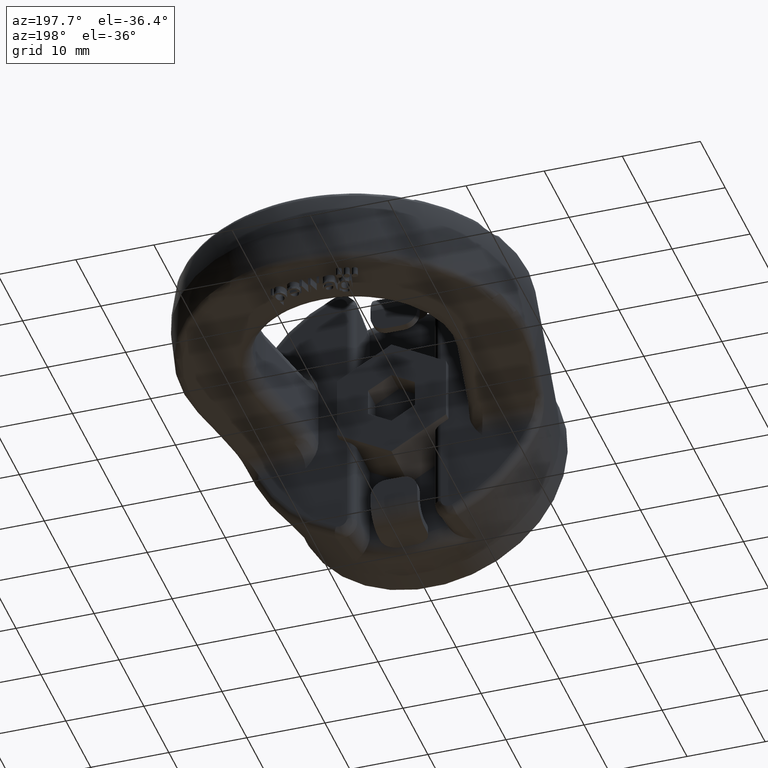
[diagram: clean part render]
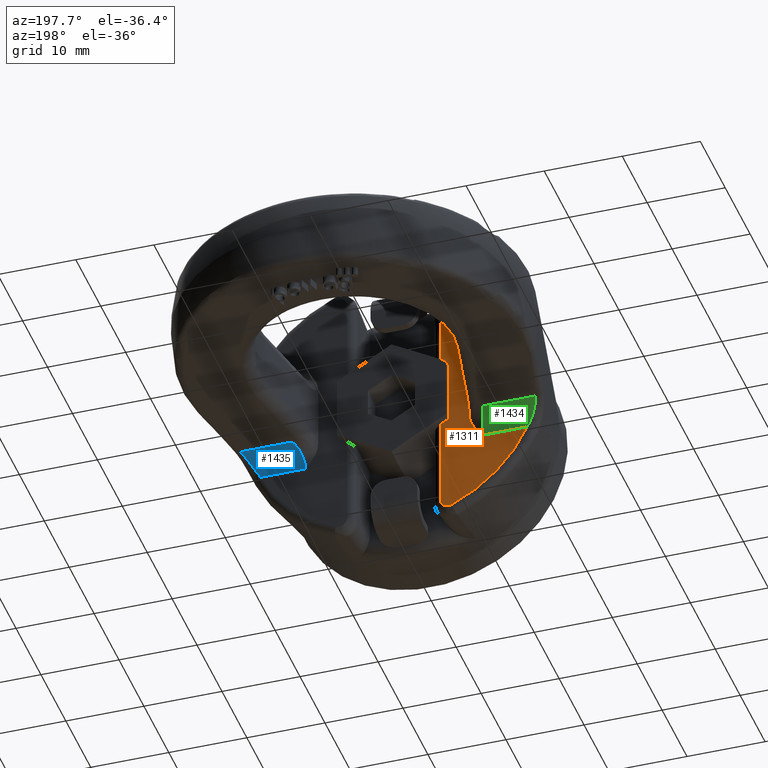
[diagram: same view with three faces highlighted in distinct colors, each labeled with its STEP entity id]
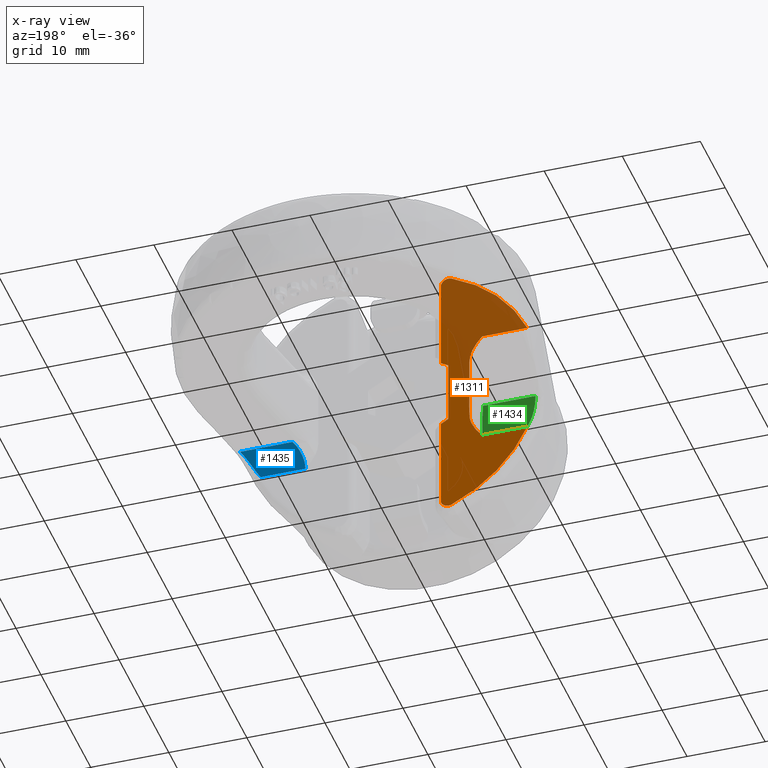
[diagram: x-ray of the same camera — body ghosted, the three highlighted faces saturated]
A machine part, auxiliary view with three faces highlighted in distinct colors.
The next image is the same camera in x-ray (body ghosted, the three faces saturated) — at least one of them is partly hidden behind the body in this view.
Their STEP definitions:

[orange] entity #1311 — the highlighted planar face has unit normal (0, 1, 0).
#1091=FACE_OUTER_BOUND('',#1823,.T.);
#1311=ADVANCED_FACE('',(#1091),#1550,.T.);
#1550=PLANE('',#5126);
#1671=CIRCLE('',#5124,18.6547584905246);
#1672=CIRCLE('',#5125,18.6547584905246);
#1823=EDGE_LOOP('',(#2767,#2768,#2769,#2770,#2771,#2772,#2773,#2774,#2775,
#2776,#2777,#2778,#2779,#2780));
#2125=LINE('',#6575,#2405);
#2126=LINE('',#6577,#2406);
#2127=LINE('',#6579,#2407);
#2128=LINE('',#6581,#2408);
#2129=LINE('',#6583,#2409);
#2130=LINE('',#6607,#2410);
#2131=LINE('',#6614,#2411);
#2132=LINE('',#6621,#2412);
#2405=VECTOR('',#5437,1.);
#2406=VECTOR('',#5438,1.);
#2407=VECTOR('',#5439,1.);
#2408=VECTOR('',#5440,1.);
#2409=VECTOR('',#5441,1.);
#2410=VECTOR('',#5444,1.);
#2411=VECTOR('',#5445,1.);
#2412=VECTOR('',#5446,1.);
#2767=ORIENTED_EDGE('',*,*,#4331,.T.);
#2768=ORIENTED_EDGE('',*,*,#4332,.T.);
#2769=ORIENTED_EDGE('',*,*,#4333,.T.);
#2770=ORIENTED_EDGE('',*,*,#4334,.T.);
#2771=ORIENTED_EDGE('',*,*,#4335,.T.);
#2772=ORIENTED_EDGE('',*,*,#4336,.T.);
#2773=ORIENTED_EDGE('',*,*,#4337,.T.);
#2774=ORIENTED_EDGE('',*,*,#4338,.T.);
#2775=ORIENTED_EDGE('',*,*,#4339,.T.);
#2776=ORIENTED_EDGE('',*,*,#4340,.T.);
#2777=ORIENTED_EDGE('',*,*,#4341,.T.);
#2778=ORIENTED_EDGE('',*,*,#4342,.T.);
#2779=ORIENTED_EDGE('',*,*,#4343,.T.);
#2780=ORIENTED_EDGE('',*,*,#4344,.T.);
#3943=VERTEX_POINT('',#6573);
#3944=VERTEX_POINT('',#6574);
#3945=VERTEX_POINT('',#6576);
#3946=VERTEX_POINT('',#6578);
#3947=VERTEX_POINT('',#6580);
#3948=VERTEX_POINT('',#6582);
#3949=VERTEX_POINT('',#6584);
#3950=VERTEX_POINT('',#6604);
#3951=VERTEX_POINT('',#6606);
#3952=VERTEX_POINT('',#6608);
#3953=VERTEX_POINT('',#6613);
#3954=VERTEX_POINT('',#6615);
#3955=VERTEX_POINT('',#6620);
#3956=VERTEX_POINT('',#6622);
#4331=EDGE_CURVE('',#3943,#3944,#4875,.T.);
#4332=EDGE_CURVE('',#3944,#3945,#2125,.T.);
#4333=EDGE_CURVE('',#3945,#3946,#2126,.T.);
#4334=EDGE_CURVE('',#3946,#3947,#2127,.T.);
#4335=EDGE_CURVE('',#3947,#3948,#2128,.T.);
#4336=EDGE_CURVE('',#3948,#3949,#2129,.T.);
#4337=EDGE_CURVE('',#3949,#3950,#4876,.T.);
#4338=EDGE_CURVE('',#3950,#3951,#1671,.T.);
#4339=EDGE_CURVE('',#3951,#3952,#2130,.T.);
#4340=EDGE_CURVE('',#3952,#3953,#4877,.T.);
#4341=EDGE_CURVE('',#3953,#3954,#2131,.T.);
#4342=EDGE_CURVE('',#3954,#3955,#4878,.T.);
#4343=EDGE_CURVE('',#3955,#3956,#2132,.T.);
#4344=EDGE_CURVE('',#3956,#3943,#1672,.T.);
#4875=B_SPLINE_CURVE_WITH_KNOTS('',3,(#6554,#6555,#6556,#6557,#6558,#6559,
#6560,#6561,#6562,#6563,#6564,#6565,#6566,#6567,#6568,#6569,#6570,#6571,
#6572),.UNSPECIFIED.,.F.,.F.,(4,3,3,3,3,3,4),(0.,0.16636582958768,0.33276934988053,
0.498799265916701,0.666594790578301,0.837817827095477,1.),.UNSPECIFIED.);
#4876=B_SPLINE_CURVE_WITH_KNOTS('',3,(#6585,#6586,#6587,#6588,#6589,#6590,
#6591,#6592,#6593,#6594,#6595,#6596,#6597,#6598,#6599,#6600,#6601,#6602,
#6603),.UNSPECIFIED.,.F.,.F.,(4,3,3,3,3,3,4),(0.,0.176665433598339,0.353446199976391,
0.528330467583618,0.699362114366066,0.866909249527525,1.),.UNSPECIFIED.);
#4877=B_SPLINE_CURVE_WITH_KNOTS('',3,(#6609,#6610,#6611,#6612),
 .UNSPECIFIED.,.F.,.F.,(4,4),(0.,1.),.UNSPECIFIED.);
#4878=B_SPLINE_CURVE_WITH_KNOTS('',3,(#6616,#6617,#6618,#6619),
 .UNSPECIFIED.,.F.,.F.,(4,4),(0.,1.),.UNSPECIFIED.);
#5124=AXIS2_PLACEMENT_3D('',#6605,#5442,#5443);
#5125=AXIS2_PLACEMENT_3D('',#6623,#5447,#5448);
#5126=AXIS2_PLACEMENT_3D('',#6624,#5449,#5450);
#5437=DIRECTION('',(0.,0.,-1.));
#5438=DIRECTION('',(-0.866025403784443,0.,-0.499999999999993));
#5439=DIRECTION('',(0.,0.,-1.));
#5440=DIRECTION('',(0.866025403784444,0.,-0.499999999999991));
#5441=DIRECTION('',(2.34291072916505E-15,0.,-1.));
#5442=DIRECTION('',(0.,1.,0.));
#5443=DIRECTION('',(2.34291072916505E-15,0.,-1.));
#5444=DIRECTION('',(1.,0.,2.34291072916505E-15));
#5445=DIRECTION('',(0.,0.,1.));
#5446=DIRECTION('',(-1.,0.,0.));
#5447=DIRECTION('',(0.,1.,0.));
#5448=DIRECTION('',(0.,0.,1.));
#5449=DIRECTION('',(0.,1.,0.));
#5450=DIRECTION('',(0.,0.,1.));
#6554=CARTESIAN_POINT('',(-7.38855146920166,15.,17.1291950052173));
#6555=CARTESIAN_POINT('',(-7.28779893410865,15.,17.172653865424));
#6556=CARTESIAN_POINT('',(-7.17819170137101,15.,17.1994339919736));
#6557=CARTESIAN_POINT('',(-7.06873742951238,15.,17.2071481497388));
#6558=CARTESIAN_POINT('',(-6.95926541915559,15.,17.2148635576843));
#6559=CARTESIAN_POINT('',(-6.84694815547005,15.,17.2037107687727));
#6560=CARTESIAN_POINT('',(-6.74111029423135,15.,17.1746936066141));
#6561=CARTESIAN_POINT('',(-6.63548138446364,15.,17.1457337318822));
#6562=CARTESIAN_POINT('',(-6.53343351982407,15.,17.0982208806601));
#6563=CARTESIAN_POINT('',(-6.44310874469345,15.,17.0362727094134));
#6564=CARTESIAN_POINT('',(-6.35181573251809,15.,16.9736604843214));
#6565=CARTESIAN_POINT('',(-6.27003140448692,15.,16.8946509783798));
#6566=CARTESIAN_POINT('',(-6.20398878813676,15.,16.8058079841223));
#6567=CARTESIAN_POINT('',(-6.13660818891035,15.,16.7151650853249));
#6568=CARTESIAN_POINT('',(-6.08378773504327,15.,16.6118727453325));
#6569=CARTESIAN_POINT('',(-6.04942980977817,15.,16.5042817920605));
#6570=CARTESIAN_POINT('',(-6.01683440321599,15.,16.4022101204664));
#6571=CARTESIAN_POINT('',(-5.99999999999999,15.,16.2938053130752));
#6572=CARTESIAN_POINT('',(-6.,15.,16.1866554802663));
#6573=CARTESIAN_POINT('',(-7.38855146920166,15.,17.1291950052173));
#6574=CARTESIAN_POINT('',(-6.,15.,16.1866554802663));
#6575=CARTESIAN_POINT('',(-6.,15.,24.75));
#6576=CARTESIAN_POINT('',(-6.,15.,4.61880215351701));
#6577=CARTESIAN_POINT('',(-0.041661335715551,15.,8.05885058526453));
#6578=CARTESIAN_POINT('',(-7.,15.,4.04145188432739));
#6579=CARTESIAN_POINT('',(-7.,15.,24.75));
#6580=CARTESIAN_POINT('',(-6.99999999999999,15.,-4.04145188432741));
#6581=CARTESIAN_POINT('',(3.46706437183239,15.,-10.0846143170298));
#6582=CARTESIAN_POINT('',(-5.99999999999999,15.,-4.61880215351702));
#6583=CARTESIAN_POINT('',(-5.99999999999994,15.,-24.75));
#6584=CARTESIAN_POINT('',(-5.99999999999996,15.,-16.1866554802662));
#6585=CARTESIAN_POINT('',(-5.99999999999996,15.,-16.1866554802662));
#6586=CARTESIAN_POINT('',(-5.9999999999998,15.,-16.303132099409));
#6587=CARTESIAN_POINT('',(-6.01997477411016,15.,-16.4212184862241));
#6588=CARTESIAN_POINT('',(-6.0584211749354,15.,-16.5311670063166));
#6589=CARTESIAN_POINT('',(-6.09688152329111,15.,-16.6411554133764));
#6590=CARTESIAN_POINT('',(-6.15493584388144,15.,-16.7460687032556));
#6591=CARTESIAN_POINT('',(-6.22799508070677,15.,-16.8368376186269));
#6592=CARTESIAN_POINT('',(-6.30026174589834,15.,-16.9266218417037));
#6593=CARTESIAN_POINT('',(-6.38929656860443,15.,-17.0050924757316));
#6594=CARTESIAN_POINT('',(-6.48768039331077,15.,-17.0651283037642));
#6595=CARTESIAN_POINT('',(-6.58392175794649,15.,-17.1238567587124));
#6596=CARTESIAN_POINT('',(-6.69185066158765,15.,-17.1665887783719));
#6597=CARTESIAN_POINT('',(-6.80226970279799,15.,-17.1893718208759));
#6598=CARTESIAN_POINT('',(-6.9104852241927,15.,-17.211700205514));
#6599=CARTESIAN_POINT('',(-7.02411160321702,15.,-17.2154922625139));
#6600=CARTESIAN_POINT('',(-7.13357129998125,15.,-17.2004015164898));
#6601=CARTESIAN_POINT('',(-7.22098982875329,15.,-17.1883494931927));
#6602=CARTESIAN_POINT('',(-7.30752267175555,15.,-17.164146177192));
#6603=CARTESIAN_POINT('',(-7.38855146920293,15.,-17.1291950052166));
#6604=CARTESIAN_POINT('',(-7.38855146920293,15.,-17.1291950052166));
#6605=CARTESIAN_POINT('',(1.26937408619407E-13,15.,-4.20507007568092E-14));
#6606=CARTESIAN_POINT('',(-17.080691272305,15.,-7.50000000000005));
#6607=CARTESIAN_POINT('',(-4.99999999999998,15.,-7.50000000000002));
#6608=CARTESIAN_POINT('',(-11.3216990566028,15.,-7.50000000000003));
#6609=CARTESIAN_POINT('',(-11.3216990566028,15.,-7.50000000000003));
#6610=CARTESIAN_POINT('',(-10.4535794230895,15.,-6.52883463033152));
#6611=CARTESIAN_POINT('',(-9.67830094339716,15.,-5.36508355430555));
#6612=CARTESIAN_POINT('',(-9.67830094339716,15.,-4.0488161257582));
#6613=CARTESIAN_POINT('',(-9.67830094339716,15.,-4.0488161257582));
#6614=CARTESIAN_POINT('',(-9.67830094339717,15.,24.75));
#6615=CARTESIAN_POINT('',(-9.67830094339717,15.,4.04881612575819));
#6616=CARTESIAN_POINT('',(-9.67830094339717,15.,4.04881612575819));
#6617=CARTESIAN_POINT('',(-9.67830094339717,15.,5.36508355430553));
#6618=CARTESIAN_POINT('',(-10.4535794230989,15.,6.52883463032307));
#6619=CARTESIAN_POINT('',(-11.3216990566028,15.,7.50000000000001));
#6620=CARTESIAN_POINT('',(-11.3216990566028,15.,7.50000000000001));
#6621=CARTESIAN_POINT('',(-9.67830094339717,15.,7.50000000000001));
#6622=CARTESIAN_POINT('',(-17.0806912723052,15.,7.50000000000001));
#6623=CARTESIAN_POINT('',(-1.26937408619406E-13,15.,4.20507007568095E-14));
#6624=CARTESIAN_POINT('',(-9.67830094339717,15.,24.75));

[blue] entity #1435 — the highlighted cylindrical surface (edge-blend (fillet) strip) has radius 2.5 mm, axis along (1, 0, 0).
#1055=ELLIPSE('',#5263,2.6534963441106,2.5);
#1069=CYLINDRICAL_SURFACE('',#5264,2.5);
#1203=FACE_OUTER_BOUND('',#1966,.T.);
#1435=ADVANCED_FACE('',(#1203),#1069,.F.);
#1966=EDGE_LOOP('',(#3381,#3382,#3383,#3384));
#2145=LINE('',#6711,#2425);
#2244=LINE('',#8291,#2552);
#2425=VECTOR('',#5473,1.);
#2552=VECTOR('',#5834,1.);
#3381=ORIENTED_EDGE('',*,*,#4366,.F.);
#3382=ORIENTED_EDGE('',*,*,#4646,.T.);
#3383=ORIENTED_EDGE('',*,*,#4606,.F.);
#3384=ORIENTED_EDGE('',*,*,#4647,.T.);
#3976=VERTEX_POINT('',#6710);
#3977=VERTEX_POINT('',#6712);
#4123=VERTEX_POINT('',#8290);
#4124=VERTEX_POINT('',#8292);
#4366=EDGE_CURVE('',#3976,#3977,#2145,.T.);
#4606=EDGE_CURVE('',#4123,#4124,#2244,.T.);
#4646=EDGE_CURVE('',#3976,#4124,#1055,.T.);
#4647=EDGE_CURVE('',#4123,#3977,#5025,.T.);
#5025=B_SPLINE_CURVE_WITH_KNOTS('',3,(#8588,#8589,#8590,#8591,#8592,#8593,
#8594,#8595,#8596,#8597,#8598,#8599,#8600,#8601,#8602,#8603),
 .UNSPECIFIED.,.F.,.F.,(4,3,3,3,3,4),(0.,0.208011469374865,0.418266227588584,
0.636822797576122,0.865891240354801,1.),.UNSPECIFIED.);
#5263=AXIS2_PLACEMENT_3D('',#8587,#5881,#5882);
#5264=AXIS2_PLACEMENT_3D('',#8604,#5883,#5884);
#5473=DIRECTION('',(1.,0.,2.34291072916505E-15));
#5834=DIRECTION('',(-1.,0.,-2.34291072916505E-15));
#5881=DIRECTION('',(-0.942153172944337,0.335182634858847,-2.20738077740818E-15));
#5882=DIRECTION('',(0.335182634858847,0.942153172944336,7.85302991440603E-16));
#5883=DIRECTION('',(1.,0.,2.34291072916505E-15));
#5884=DIRECTION('',(2.08166817117217E-15,0.,-1.));
#6710=CARTESIAN_POINT('',(11.3216990566028,15.,-7.49999999999998));
#6711=CARTESIAN_POINT('',(9.67830094339719,15.,-7.49999999999998));
#6712=CARTESIAN_POINT('',(17.0806912723052,15.,-7.49999999999997));
#8290=CARTESIAN_POINT('',(18.9284913075255,17.5,-4.99999999999996));
#8291=CARTESIAN_POINT('',(-45.,17.5,-5.00000000000011));
#8292=CARTESIAN_POINT('',(12.2111049528102,17.5,-4.99999999999998));
#8587=CARTESIAN_POINT('',(12.2111049528102,17.5,-7.49999999999998));
#8588=CARTESIAN_POINT('',(18.9284913075255,17.5,-4.99999999999996));
#8589=CARTESIAN_POINT('',(18.8467754958478,17.211062609114,-4.99999999999996));
#8590=CARTESIAN_POINT('',(18.7502155961247,16.9223431375753,-5.05144143739171));
#8591=CARTESIAN_POINT('',(18.6451641587163,16.6575031180479,-5.14623726686373));
#8592=CARTESIAN_POINT('',(18.5388932529815,16.389588756814,-5.24213351451525));
#8593=CARTESIAN_POINT('',(18.4209326616278,16.1390199426808,-5.38474430796017));
#8594=CARTESIAN_POINT('',(18.2956556024859,15.9241938006562,-5.55916646202982));
#8595=CARTESIAN_POINT('',(18.1654248687784,15.7008730563234,-5.74048557388411));
#8596=CARTESIAN_POINT('',(18.0238145957565,15.5106308294809,-5.96045460741572));
#8597=CARTESIAN_POINT('',(17.8757635682838,15.3654416437221,-6.19859282941717));
#8598=CARTESIAN_POINT('',(17.7205964894918,15.2132739606539,-6.4481771307725));
#8599=CARTESIAN_POINT('',(17.5544725635087,15.1067313165011,-6.72341812433968));
#8600=CARTESIAN_POINT('',(17.3850330504848,15.0501029442962,-7.00199958187387));
#8601=CARTESIAN_POINT('',(17.2850622182692,15.0166916968527,-7.16636514013417));
#8602=CARTESIAN_POINT('',(17.1829475130134,15.,-7.33365644969499));
#8603=CARTESIAN_POINT('',(17.0806912723052,15.,-7.49999999999997));
#8604=CARTESIAN_POINT('',(9.67830094339719,17.5,-7.49999999999998));

[green] entity #1434 — the highlighted cylindrical surface (edge-blend (fillet) strip) has radius 2.5 mm, axis along (1, 0, 0).
#1054=ELLIPSE('',#5261,2.6534963441106,2.5);
#1068=CYLINDRICAL_SURFACE('',#5262,2.5);
#1202=FACE_OUTER_BOUND('',#1965,.T.);
#1434=ADVANCED_FACE('',(#1202),#1068,.F.);
#1965=EDGE_LOOP('',(#3377,#3378,#3379,#3380));
#2130=LINE('',#6607,#2410);
#2243=LINE('',#8277,#2551);
#2410=VECTOR('',#5444,1.);
#2551=VECTOR('',#5831,1.);
#3377=ORIENTED_EDGE('',*,*,#4602,.F.);
#3378=ORIENTED_EDGE('',*,*,#4644,.T.);
#3379=ORIENTED_EDGE('',*,*,#4339,.F.);
#3380=ORIENTED_EDGE('',*,*,#4645,.T.);
#3951=VERTEX_POINT('',#6606);
#3952=VERTEX_POINT('',#6608);
#4119=VERTEX_POINT('',#8276);
#4120=VERTEX_POINT('',#8278);
#4339=EDGE_CURVE('',#3951,#3952,#2130,.T.);
#4602=EDGE_CURVE('',#4119,#4120,#2243,.T.);
#4644=EDGE_CURVE('',#4119,#3952,#1054,.T.);
#4645=EDGE_CURVE('',#3951,#4120,#5024,.T.);
#5024=B_SPLINE_CURVE_WITH_KNOTS('',3,(#8570,#8571,#8572,#8573,#8574,#8575,
#8576,#8577,#8578,#8579,#8580,#8581,#8582,#8583,#8584,#8585),
 .UNSPECIFIED.,.F.,.F.,(4,3,3,3,3,4),(0.,0.242955097477908,0.483511078829788,
0.712852359993803,0.930377931692601,1.),.UNSPECIFIED.);
#5261=AXIS2_PLACEMENT_3D('',#8569,#5877,#5878);
#5262=AXIS2_PLACEMENT_3D('',#8586,#5879,#5880);
#5444=DIRECTION('',(1.,0.,2.34291072916505E-15));
#5831=DIRECTION('',(-1.,0.,-2.34291072916505E-15));
#5877=DIRECTION('',(0.942153172944337,0.335182634858847,2.20738077740818E-15));
#5878=DIRECTION('',(0.335182634858847,-0.942153172944336,7.85302991440603E-16));
#5879=DIRECTION('',(1.,0.,2.34291072916505E-15));
#5880=DIRECTION('',(2.42861286636753E-15,0.,-1.));
#6606=CARTESIAN_POINT('',(-17.080691272305,15.,-7.50000000000005));
#6607=CARTESIAN_POINT('',(-4.99999999999998,15.,-7.50000000000002));
#6608=CARTESIAN_POINT('',(-11.3216990566028,15.,-7.50000000000003));
#8276=CARTESIAN_POINT('',(-12.2111049528101,17.5,-5.00000000000003));
#8277=CARTESIAN_POINT('',(-45.,17.5,-5.00000000000011));
#8278=CARTESIAN_POINT('',(-18.9284913075253,17.5,-5.00000000000005));
#8569=CARTESIAN_POINT('',(-12.2111049528101,17.5,-7.50000000000004));
#8570=CARTESIAN_POINT('',(-17.080691272305,15.,-7.50000000000005));
#8571=CARTESIAN_POINT('',(-17.2645175986086,15.,-7.20096374025584));
#8572=CARTESIAN_POINT('',(-17.448664034783,15.0547257845549,-6.89690924500002));
#8573=CARTESIAN_POINT('',(-17.6222450112662,15.1631305547548,-6.61172009148058));
#8574=CARTESIAN_POINT('',(-17.7939505738478,15.2703640916942,-6.32961219556174));
#8575=CARTESIAN_POINT('',(-17.9598134297964,15.4333959242431,-6.05900621274356));
#8576=CARTESIAN_POINT('',(-18.1122968576135,15.6421334954041,-5.82717841623785));
#8577=CARTESIAN_POINT('',(-18.2576762991103,15.8411462796078,-5.60615114749177));
#8578=CARTESIAN_POINT('',(-18.3950783556704,16.087147204672,-5.41480206282015));
#8579=CARTESIAN_POINT('',(-18.5191382820377,16.3603254442411,-5.27488384416555));
#8580=CARTESIAN_POINT('',(-18.636841942083,16.6195072734068,-5.14213439859584));
#8581=CARTESIAN_POINT('',(-18.7460738825299,16.9102537801325,-5.05216496374757));
#8582=CARTESIAN_POINT('',(-18.8407037874417,17.2076940862233,-5.01714735580806));
#8583=CARTESIAN_POINT('',(-18.8714031282497,17.3041881209073,-5.00578712585309));
#8584=CARTESIAN_POINT('',(-18.9007615061707,17.4019507205681,-5.00000000000005));
#8585=CARTESIAN_POINT('',(-18.9284913075253,17.5,-5.00000000000005));
#8586=CARTESIAN_POINT('',(-4.99999999999998,17.5,-7.50000000000002));